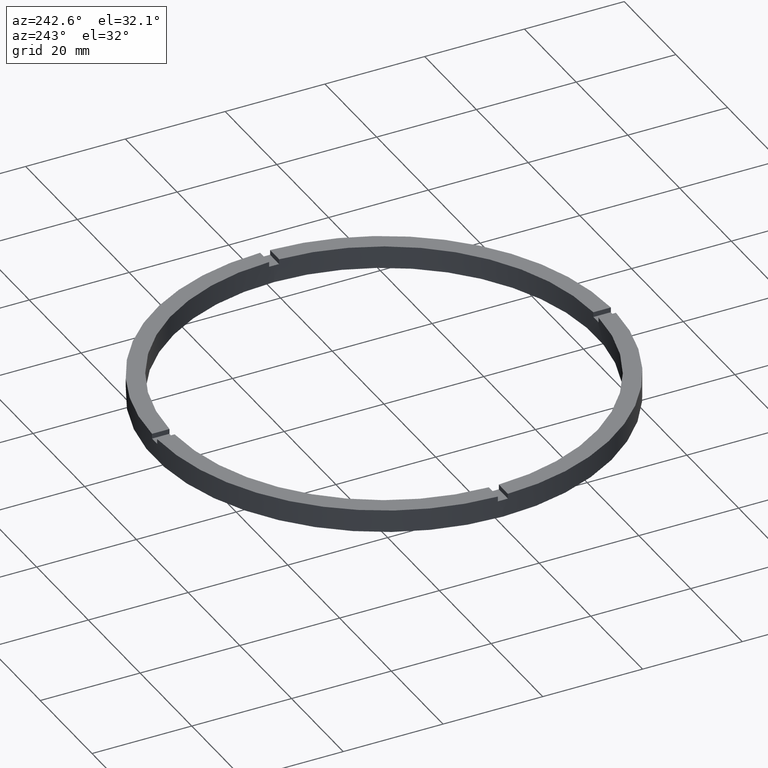
[diagram: clean part render]
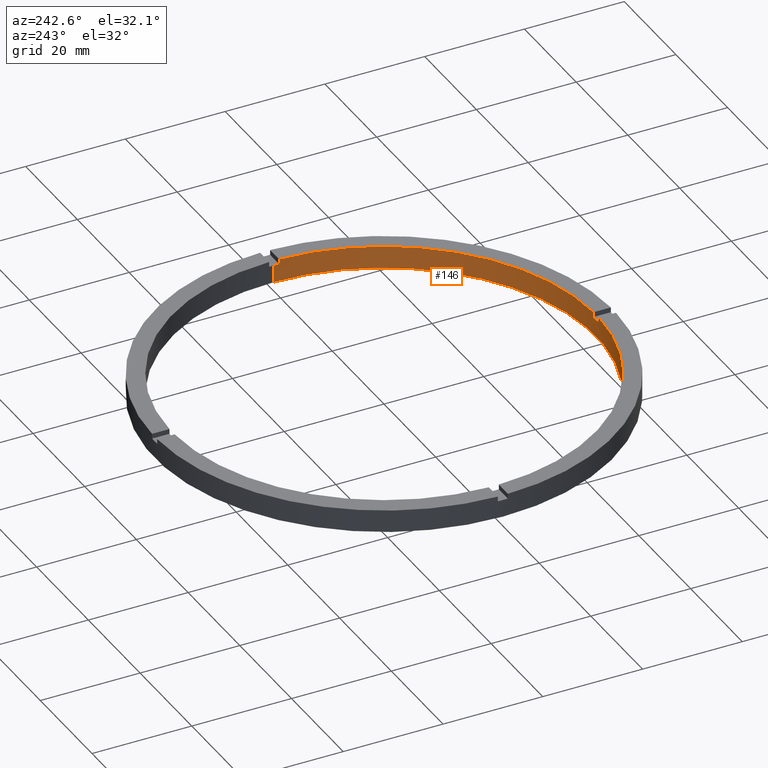
[diagram: same view with one face highlighted and labeled with its STEP entity id]
A machine part, auxiliary view. The second image highlights one B-rep face of the part: STEP entity #146.
In plain terms, the highlighted cylindrical surface (partial cylindrical patch) has radius 42.5 mm, axis along (-0, -0, -1).
Its self-contained STEP definition (entity closure, byte-faithful):
#21 = DIRECTION ( 'NONE',  ( 0.000000000000000000, 0.000000000000000000, 1.000000000000000000 ) ) ;
#22 = EDGE_CURVE ( 'NONE', #504, #131, #178, .T. ) ;
#30 = DIRECTION ( 'NONE',  ( 1.000000000000000000, 0.000000000000000000, 0.000000000000000000 ) ) ;
#43 = DIRECTION ( 'NONE',  ( -0.000000000000000000, -0.000000000000000000, -1.000000000000000000 ) ) ;
#47 = EDGE_CURVE ( 'NONE', #454, #492, #430, .T. ) ;
#51 = DIRECTION ( 'NONE',  ( 0.000000000000000000, 0.000000000000000000, 1.000000000000000000 ) ) ;
#52 = CARTESIAN_POINT ( 'NONE',  ( 0.000000000000000000, 0.000000000000000000, 3.499999999999999556 ) ) ;
#61 = CARTESIAN_POINT ( 'NONE',  ( 0.000000000000000000, 0.000000000000000000, 4.500000000000000000 ) ) ;
#62 = EDGE_CURVE ( 'NONE', #750, #225, #425, .T. ) ;
#66 = DIRECTION ( 'NONE',  ( 1.000000000000000000, 0.000000000000000000, 0.000000000000000000 ) ) ;
#68 = VECTOR ( 'NONE', #43, 1000.000000000000000 ) ;
#71 = CIRCLE ( 'NONE', #327, 42.50000000000000711 ) ;
#81 = FACE_OUTER_BOUND ( 'NONE', #212, .T. ) ;
#84 = LINE ( 'NONE', #543, #606 ) ;
#99 = LINE ( 'NONE', #133, #617 ) ;
#121 = CARTESIAN_POINT ( 'NONE',  ( 42.48823366533375179, -1.000000000000156097, 4.500000000000000000 ) ) ;
#131 = VERTEX_POINT ( 'NONE', #376 ) ;
#132 = CARTESIAN_POINT ( 'NONE',  ( -42.48823366533375179, -1.000000000000029532, 4.500000000000000000 ) ) ;
#133 = CARTESIAN_POINT ( 'NONE',  ( -1.000000000000158540, -42.48823366533375179, 4.500000000000000000 ) ) ;
#139 = DIRECTION ( 'NONE',  ( -1.000000000000000000, 0.000000000000000000, 0.000000000000000000 ) ) ;
#140 = AXIS2_PLACEMENT_3D ( 'NONE', #618, #21, #244 ) ;
#146 = ADVANCED_FACE ( 'NONE', ( #81 ), #325, .F. ) ;
#155 = VERTEX_POINT ( 'NONE', #548 ) ;
#161 = VERTEX_POINT ( 'NONE', #121 ) ;
#166 = ORIENTED_EDGE ( 'NONE', *, *, #315, .F. ) ;
#167 = EDGE_CURVE ( 'NONE', #492, #131, #614, .T. ) ;
#170 = CARTESIAN_POINT ( 'NONE',  ( 0.9999999999998414602, -42.48823366533375889, 3.499999999999999556 ) ) ;
#178 = CIRCLE ( 'NONE', #140, 42.50000000000000711 ) ;
#181 = ORIENTED_EDGE ( 'NONE', *, *, #47, .T. ) ;
#182 = ORIENTED_EDGE ( 'NONE', *, *, #22, .F. ) ;
#184 = ORIENTED_EDGE ( 'NONE', *, *, #479, .T. ) ;
#195 = ORIENTED_EDGE ( 'NONE', *, *, #373, .T. ) ;
#203 = CARTESIAN_POINT ( 'NONE',  ( -42.48823366533375179, -1.000000000000029532, 4.500000000000000000 ) ) ;
#212 = EDGE_LOOP ( 'NONE', ( #181, #736, #182, #719, #195, #231, #500, #166, #184, #420, #705, #409 ) ) ;
#213 = VERTEX_POINT ( 'NONE', #170 ) ;
#216 = VERTEX_POINT ( 'NONE', #412 ) ;
#225 = VERTEX_POINT ( 'NONE', #423 ) ;
#231 = ORIENTED_EDGE ( 'NONE', *, *, #62, .F. ) ;
#232 = DIRECTION ( 'NONE',  ( -0.000000000000000000, -0.000000000000000000, -1.000000000000000000 ) ) ;
#244 = DIRECTION ( 'NONE',  ( 1.000000000000000000, 0.000000000000000000, 0.000000000000000000 ) ) ;
#254 = CARTESIAN_POINT ( 'NONE',  ( 0.000000000000000000, 0.000000000000000000, 3.499999999999999556 ) ) ;
#260 = CARTESIAN_POINT ( 'NONE',  ( 0.000000000000000000, 0.000000000000000000, 4.500000000000000000 ) ) ;
#268 = VECTOR ( 'NONE', #51, 1000.000000000000000 ) ;
#294 = CARTESIAN_POINT ( 'NONE',  ( -42.50000000000000711, 0.000000000000000000, 0.000000000000000000 ) ) ;
#295 = CARTESIAN_POINT ( 'NONE',  ( -1.000000000000158540, -42.48823366533375179, 3.499999999999999556 ) ) ;
#304 = EDGE_CURVE ( 'NONE', #474, #161, #611, .T. ) ;
#315 = EDGE_CURVE ( 'NONE', #413, #216, #99, .T. ) ;
#325 = CYLINDRICAL_SURFACE ( 'NONE', #667, 42.50000000000000711 ) ;
#327 = AXIS2_PLACEMENT_3D ( 'NONE', #52, #757, #641 ) ;
#330 = CIRCLE ( 'NONE', #377, 42.50000000000000711 ) ;
#333 = VECTOR ( 'NONE', #632, 1000.000000000000000 ) ;
#356 = DIRECTION ( 'NONE',  ( 1.000000000000000000, 0.000000000000000000, 0.000000000000000000 ) ) ;
#373 = EDGE_CURVE ( 'NONE', #155, #225, #71, .T. ) ;
#376 = CARTESIAN_POINT ( 'NONE',  ( 42.50000000000000711, 5.204748896376252474E-15, 0.000000000000000000 ) ) ;
#377 = AXIS2_PLACEMENT_3D ( 'NONE', #595, #451, #356 ) ;
#387 = CIRCLE ( 'NONE', #444, 42.50000000000000711 ) ;
#392 = CARTESIAN_POINT ( 'NONE',  ( 0.9999999999998414602, -42.48823366533375889, 4.500000000000000000 ) ) ;
#409 = ORIENTED_EDGE ( 'NONE', *, *, #754, .F. ) ;
#412 = CARTESIAN_POINT ( 'NONE',  ( -1.000000000000158540, -42.48823366533375179, 4.500000000000000000 ) ) ;
#413 = VERTEX_POINT ( 'NONE', #295 ) ;
#420 = ORIENTED_EDGE ( 'NONE', *, *, #553, .F. ) ;
#421 = DIRECTION ( 'NONE',  ( 0.000000000000000000, 0.000000000000000000, 1.000000000000000000 ) ) ;
#423 = CARTESIAN_POINT ( 'NONE',  ( -42.48823366533375179, -1.000000000000029532, 3.499999999999999556 ) ) ;
#425 = LINE ( 'NONE', #132, #436 ) ;
#430 = CIRCLE ( 'NONE', #638, 42.50000000000000711 ) ;
#436 = VECTOR ( 'NONE', #607, 1000.000000000000000 ) ;
#440 = CARTESIAN_POINT ( 'NONE',  ( 42.50000000000000711, 5.204748896376252474E-15, 4.500000000000000000 ) ) ;
#444 = AXIS2_PLACEMENT_3D ( 'NONE', #585, #552, #66 ) ;
#451 = DIRECTION ( 'NONE',  ( -0.000000000000000000, 0.000000000000000000, 1.000000000000000000 ) ) ;
#454 = VERTEX_POINT ( 'NONE', #749 ) ;
#457 = DIRECTION ( 'NONE',  ( -0.000000000000000000, -0.000000000000000000, -1.000000000000000000 ) ) ;
#459 = EDGE_CURVE ( 'NONE', #155, #504, #598, .T. ) ;
#460 = CARTESIAN_POINT ( 'NONE',  ( -42.50000000000000711, 0.000000000000000000, 4.500000000000000000 ) ) ;
#474 = VERTEX_POINT ( 'NONE', #392 ) ;
#479 = EDGE_CURVE ( 'NONE', #413, #213, #330, .T. ) ;
#489 = DIRECTION ( 'NONE',  ( 0.000000000000000000, 0.000000000000000000, 1.000000000000000000 ) ) ;
#492 = VERTEX_POINT ( 'NONE', #587 ) ;
#496 = DIRECTION ( 'NONE',  ( 1.000000000000000000, 0.000000000000000000, 0.000000000000000000 ) ) ;
#500 = ORIENTED_EDGE ( 'NONE', *, *, #601, .T. ) ;
#504 = VERTEX_POINT ( 'NONE', #294 ) ;
#522 = LINE ( 'NONE', #640, #268 ) ;
#543 = CARTESIAN_POINT ( 'NONE',  ( 0.9999999999998414602, -42.48823366533375889, 4.500000000000000000 ) ) ;
#548 = CARTESIAN_POINT ( 'NONE',  ( -42.50000000000000711, 0.000000000000000000, 3.499999999999999556 ) ) ;
#552 = DIRECTION ( 'NONE',  ( 0.000000000000000000, 0.000000000000000000, 1.000000000000000000 ) ) ;
#553 = EDGE_CURVE ( 'NONE', #474, #213, #84, .T. ) ;
#585 = CARTESIAN_POINT ( 'NONE',  ( 0.000000000000000000, 0.000000000000000000, 4.500000000000000000 ) ) ;
#587 = CARTESIAN_POINT ( 'NONE',  ( 42.50000000000000711, 5.204748896376252474E-15, 3.499999999999999556 ) ) ;
#595 = CARTESIAN_POINT ( 'NONE',  ( 0.000000000000000000, 0.000000000000000000, 3.499999999999999556 ) ) ;
#598 = LINE ( 'NONE', #460, #68 ) ;
#601 = EDGE_CURVE ( 'NONE', #750, #216, #387, .T. ) ;
#606 = VECTOR ( 'NONE', #457, 1000.000000000000000 ) ;
#607 = DIRECTION ( 'NONE',  ( -0.000000000000000000, -0.000000000000000000, -1.000000000000000000 ) ) ;
#611 = CIRCLE ( 'NONE', #778, 42.50000000000000711 ) ;
#614 = LINE ( 'NONE', #440, #333 ) ;
#617 = VECTOR ( 'NONE', #489, 1000.000000000000000 ) ;
#618 = CARTESIAN_POINT ( 'NONE',  ( 0.000000000000000000, 0.000000000000000000, 0.000000000000000000 ) ) ;
#632 = DIRECTION ( 'NONE',  ( -0.000000000000000000, -0.000000000000000000, -1.000000000000000000 ) ) ;
#638 = AXIS2_PLACEMENT_3D ( 'NONE', #254, #421, #496 ) ;
#640 = CARTESIAN_POINT ( 'NONE',  ( 42.48823366533375179, -1.000000000000156097, 4.500000000000000000 ) ) ;
#641 = DIRECTION ( 'NONE',  ( 1.000000000000000000, 0.000000000000000000, 0.000000000000000000 ) ) ;
#667 = AXIS2_PLACEMENT_3D ( 'NONE', #61, #232, #139 ) ;
#705 = ORIENTED_EDGE ( 'NONE', *, *, #304, .T. ) ;
#714 = DIRECTION ( 'NONE',  ( 0.000000000000000000, 0.000000000000000000, 1.000000000000000000 ) ) ;
#719 = ORIENTED_EDGE ( 'NONE', *, *, #459, .F. ) ;
#736 = ORIENTED_EDGE ( 'NONE', *, *, #167, .T. ) ;
#749 = CARTESIAN_POINT ( 'NONE',  ( 42.48823366533375179, -1.000000000000156097, 3.499999999999999556 ) ) ;
#750 = VERTEX_POINT ( 'NONE', #203 ) ;
#754 = EDGE_CURVE ( 'NONE', #454, #161, #522, .T. ) ;
#757 = DIRECTION ( 'NONE',  ( 0.000000000000000000, 0.000000000000000000, 1.000000000000000000 ) ) ;
#778 = AXIS2_PLACEMENT_3D ( 'NONE', #260, #714, #30 ) ;